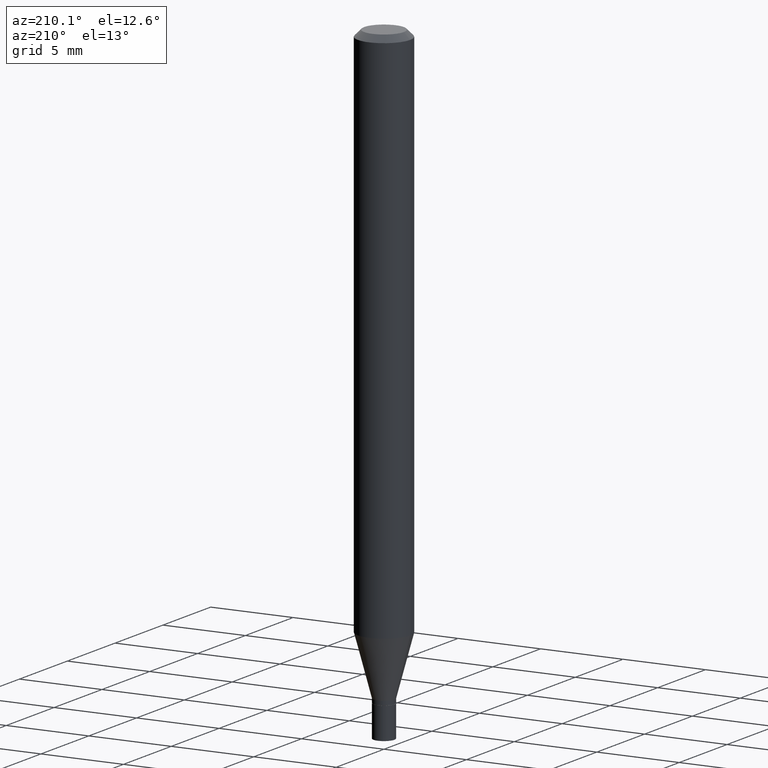
[diagram: clean part render]
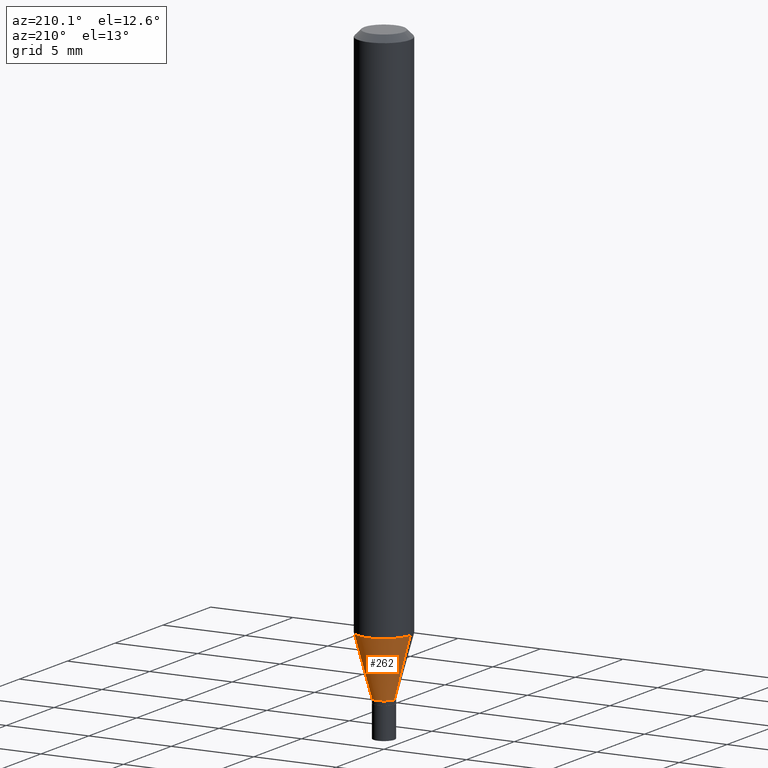
[diagram: same view with one face highlighted and labeled with its STEP entity id]
A machine part, auxiliary view. The second image highlights one B-rep face of the part: STEP entity #262.
In plain terms, the highlighted conical surface has half-angle 15 deg.
Its self-contained STEP definition (entity closure, byte-faithful):
#15 = LINE ( 'NONE', #158, #332 ) ;
#26 = EDGE_LOOP ( 'NONE', ( #303, #282, #52, #459 ) ) ;
#52 = ORIENTED_EDGE ( 'NONE', *, *, #84, .F. ) ;
#56 = EDGE_CURVE ( 'NONE', #232, #376, #59, .T. ) ;
#59 = CIRCLE ( 'NONE', #156, 0.02499999999999992853 ) ;
#68 = DIRECTION ( 'NONE',  ( 1.000000000000000000, -6.982962677686274599E-15, 0.000000000000000000 ) ) ;
#73 = DIRECTION ( 'NONE',  ( 0.2588190451025213501, 1.565188264969621968E-15, 0.9659258262890682012 ) ) ;
#84 = EDGE_CURVE ( 'NONE', #128, #461, #359, .T. ) ;
#89 = AXIS2_PLACEMENT_3D ( 'NONE', #221, #368, #68 ) ;
#126 = CARTESIAN_POINT ( 'NONE',  ( -0.06250000000000001388, -4.007717418978942661E-15, -1.275048094716167313 ) ) ;
#127 = CONICAL_SURFACE ( 'NONE', #89, 0.02499999999999992853, 0.2617993877991500740 ) ;
#128 = VERTEX_POINT ( 'NONE', #291 ) ;
#155 = CARTESIAN_POINT ( 'NONE',  ( 3.460338360751968441E-29, -4.940446094463050737E-15, -1.415000000000000036 ) ) ;
#156 = AXIS2_PLACEMENT_3D ( 'NONE', #155, #319, #429 ) ;
#157 = CARTESIAN_POINT ( 'NONE',  ( -0.02499999999999992853, -4.385263914750984097E-15, -1.415000000000000036 ) ) ;
#158 = CARTESIAN_POINT ( 'NONE',  ( -0.02499999999999992853, -4.762810410523027111E-15, -1.415000000000000036 ) ) ;
#190 = DIRECTION ( 'NONE',  ( 1.000000000000000000, -6.982962677686262766E-15, 0.000000000000000000 ) ) ;
#212 = LINE ( 'NONE', #326, #316 ) ;
#221 = CARTESIAN_POINT ( 'NONE',  ( 3.460338360751968441E-29, -4.940446094463050737E-15, -1.415000000000000036 ) ) ;
#232 = VERTEX_POINT ( 'NONE', #396 ) ;
#247 = DIRECTION ( 'NONE',  ( -2.445468806185136597E-29, 3.491481338843145583E-15, 1.000000000000000000 ) ) ;
#253 = CARTESIAN_POINT ( 'NONE',  ( 3.118090342014178512E-29, -4.451806628829006066E-15, -1.275048094716167313 ) ) ;
#262 = ADVANCED_FACE ( 'NONE', ( #407 ), #127, .T. ) ;
#265 = DIRECTION ( 'NONE',  ( -0.2588190451025213501, 5.211531920934551042E-15, 0.9659258262890682012 ) ) ;
#272 = AXIS2_PLACEMENT_3D ( 'NONE', #253, #247, #190 ) ;
#282 = ORIENTED_EDGE ( 'NONE', *, *, #430, .T. ) ;
#291 = CARTESIAN_POINT ( 'NONE',  ( 0.06250000000000001388, -4.888241796184397736E-15, -1.275048094716167313 ) ) ;
#303 = ORIENTED_EDGE ( 'NONE', *, *, #56, .T. ) ;
#316 = VECTOR ( 'NONE', #73, 39.37007874015747433 ) ;
#319 = DIRECTION ( 'NONE',  ( -2.445468806185136597E-29, 3.491481338843145583E-15, 1.000000000000000000 ) ) ;
#326 = CARTESIAN_POINT ( 'NONE',  ( 0.02499999999999992853, -5.115020161405207405E-15, -1.415000000000000036 ) ) ;
#331 = EDGE_CURVE ( 'NONE', #232, #128, #212, .T. ) ;
#332 = VECTOR ( 'NONE', #265, 39.37007874015747433 ) ;
#359 = CIRCLE ( 'NONE', #272, 0.06250000000000000000 ) ;
#368 = DIRECTION ( 'NONE',  ( -2.445468806185136597E-29, 3.491481338843145583E-15, 1.000000000000000000 ) ) ;
#376 = VERTEX_POINT ( 'NONE', #157 ) ;
#396 = CARTESIAN_POINT ( 'NONE',  ( 0.02499999999999992853, -5.115020161405207405E-15, -1.415000000000000036 ) ) ;
#407 = FACE_OUTER_BOUND ( 'NONE', #26, .T. ) ;
#429 = DIRECTION ( 'NONE',  ( 1.000000000000000000, -6.982962677686274599E-15, 0.000000000000000000 ) ) ;
#430 = EDGE_CURVE ( 'NONE', #376, #461, #15, .T. ) ;
#459 = ORIENTED_EDGE ( 'NONE', *, *, #331, .F. ) ;
#461 = VERTEX_POINT ( 'NONE', #126 ) ;